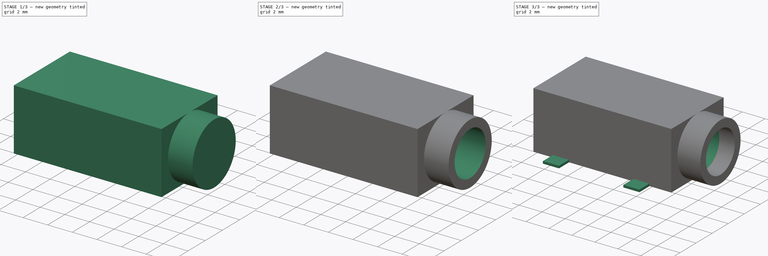
[diagram: build sequence overview — one tinted view per stage of 3, left to right]
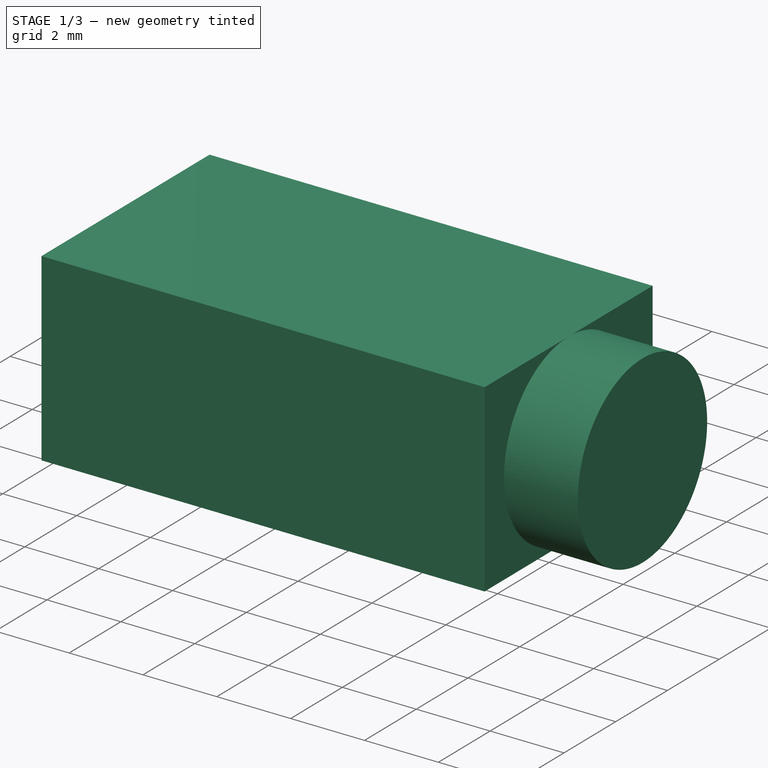
[diagram: stage 1 of 3 — iso view after this stage's code; geometry added in this stage tinted green]
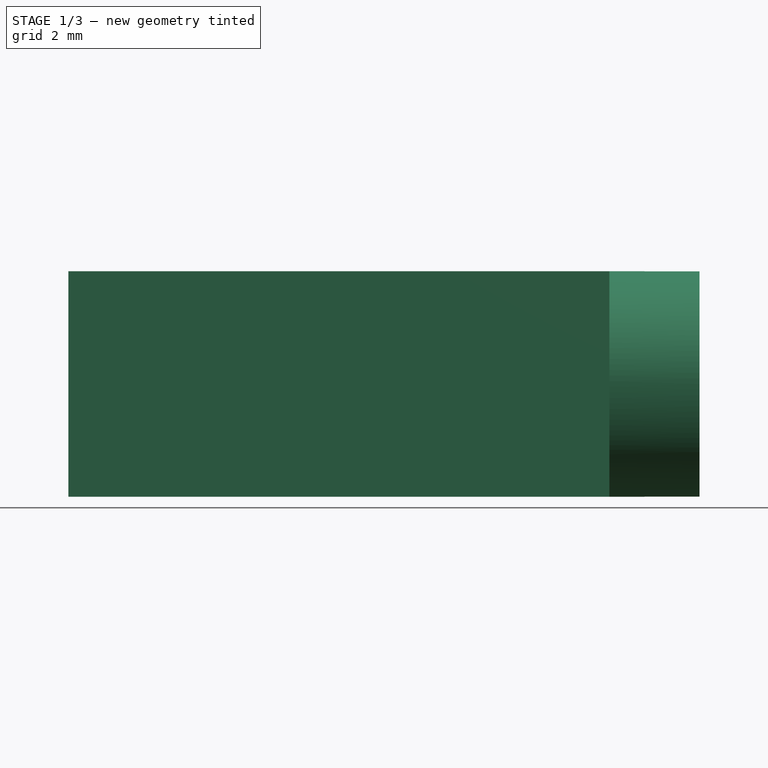
[diagram: stage 1 of 3 — front view after this stage's code; geometry added in this stage tinted green]
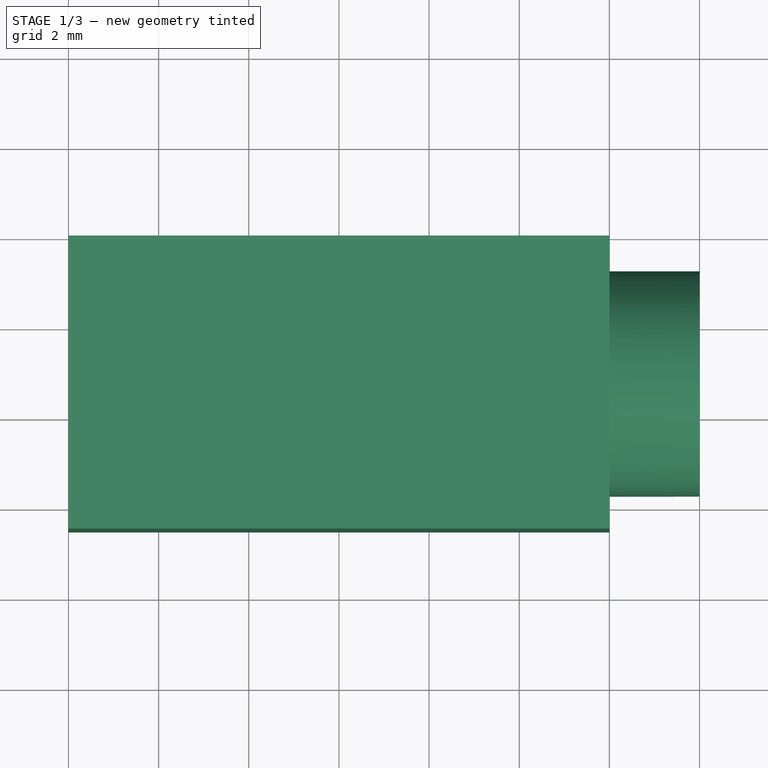
[diagram: stage 1 of 3 — top view after this stage's code; geometry added in this stage tinted green]
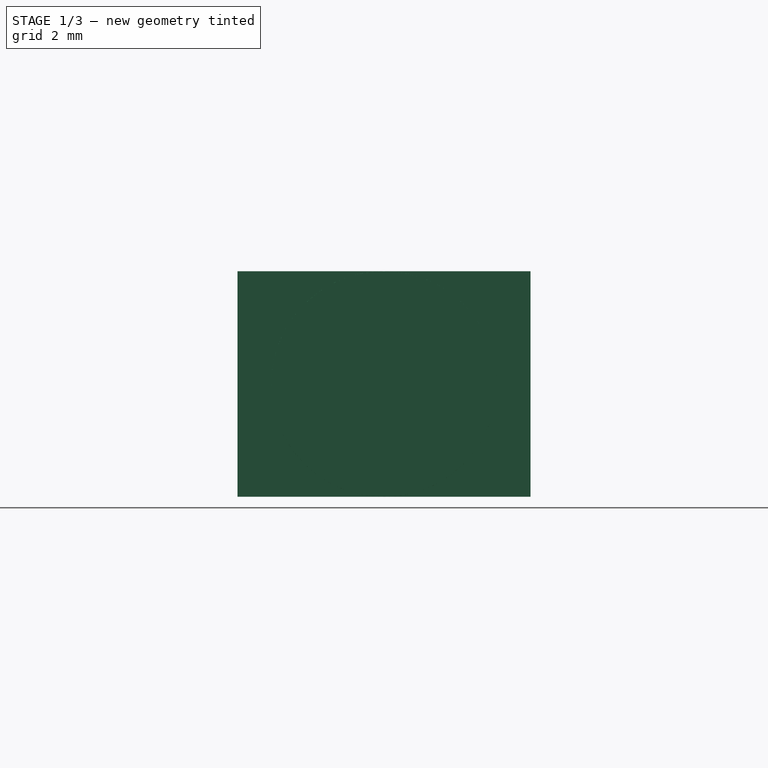
[diagram: stage 1 of 3 — right view after this stage's code; geometry added in this stage tinted green]
FCSTD DOCUMENT  (FreeCAD 0.14R3702 (Git))
Label: 3-5mm-audio-jack
License: CC-BY 3.0
LicenseURL: http://creativecommons.org/licenses/by/3.0/
objects: Sketcher::SketchObject×4, PartDesign::Pad×3, PartDesign::Pocket×1, PartDesign::Draft×1
note: 13 computed .brp shape members not serialized (recipe doc carries the construction recipe); baked Part::Feature solids carry a one-line shape summary decoded from their .brp

FEATURE [Sketcher::SketchObject] Sketch
  sketch-geometry (4):
    g0: LineSegment StartX=0 StartY=0 StartZ=0 EndX=12 EndY=0 EndZ=0
    g1: LineSegment StartX=12 StartY=0 StartZ=0 EndX=12 EndY=-6.5 EndZ=0
    g2: LineSegment StartX=12 StartY=-6.5 StartZ=0 EndX=0 EndY=-6.5 EndZ=0
    g3: LineSegment StartX=0 StartY=-6.5 StartZ=0 EndX=0 EndY=0 EndZ=0
  constraints (11):
    c: Coincident(g0,g1)
    c: Coincident(g1,g2)
    c: Coincident(g2,g3)
    c: Coincident(g3,g0)
    c: Horizontal(g0)
    c: Horizontal(g2)
    c: Vertical(g1)
    c: Vertical(g3)
    c: Coincident(g0,g-1)
    c: DistanceX(g-1,g0) = 12
    c: DistanceY(g0,g1) = -6.5
FEATURE [PartDesign::Pad] Pad
  Length = 5
  Length2 = 100
  Sketch = -> Sketch
  Type = 0
FEATURE [Sketcher::SketchObject] Sketch001
  Placement = pos=(12,0,0) rot=(0.57735,0.57735,0.57735;2.0944rad)
  Support = -> Pad [Face2]
  sketch-geometry (1):
    g0: Circle CenterX=-3.25 CenterY=2.5 CenterZ=0 NormalX=0 NormalY=0 NormalZ=1 Radius=2.5
  constraints (3):
    c: Radius(g0) = 2.5
    c: Tangent(g0,g-1)
    c: DistanceX(g-1,g0) = -3.25
FEATURE [PartDesign::Pad] Pad001
  Length = 2
  Length2 = 100
  Sketch = -> Sketch001
  Type = 0
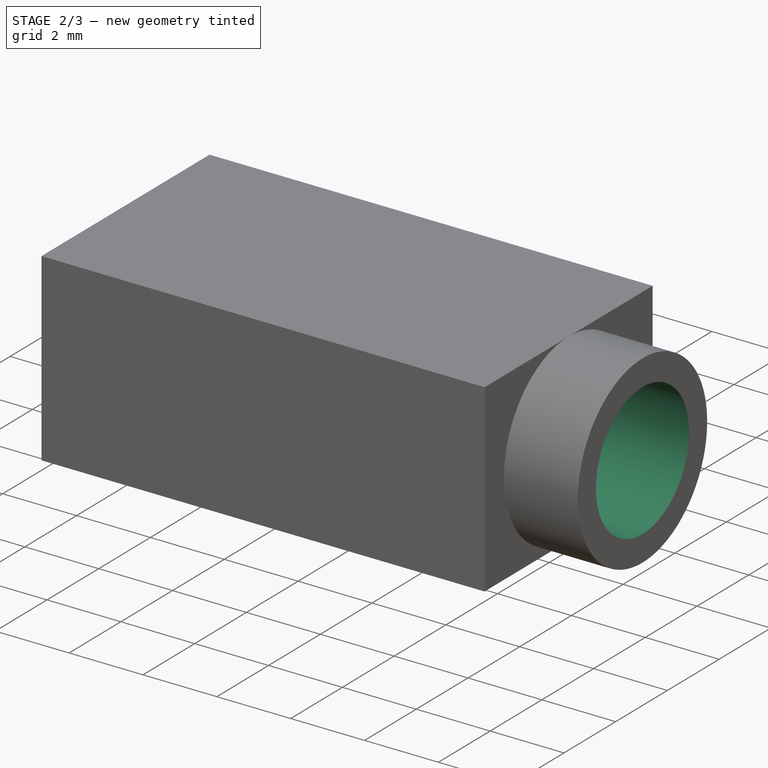
[diagram: stage 2 of 3 — iso view after this stage's code; geometry added in this stage tinted green]
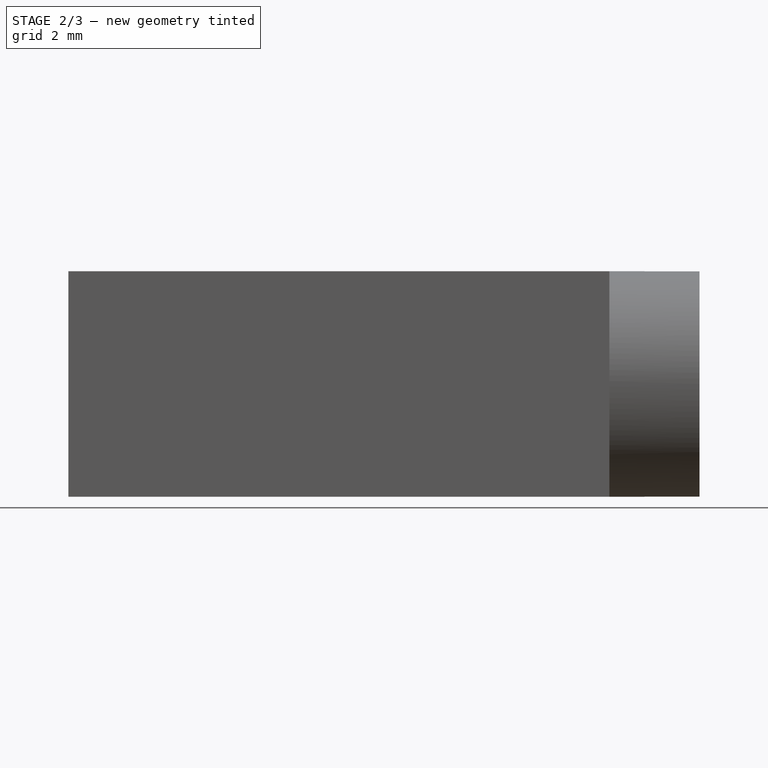
[diagram: stage 2 of 3 — front view after this stage's code; geometry added in this stage tinted green]
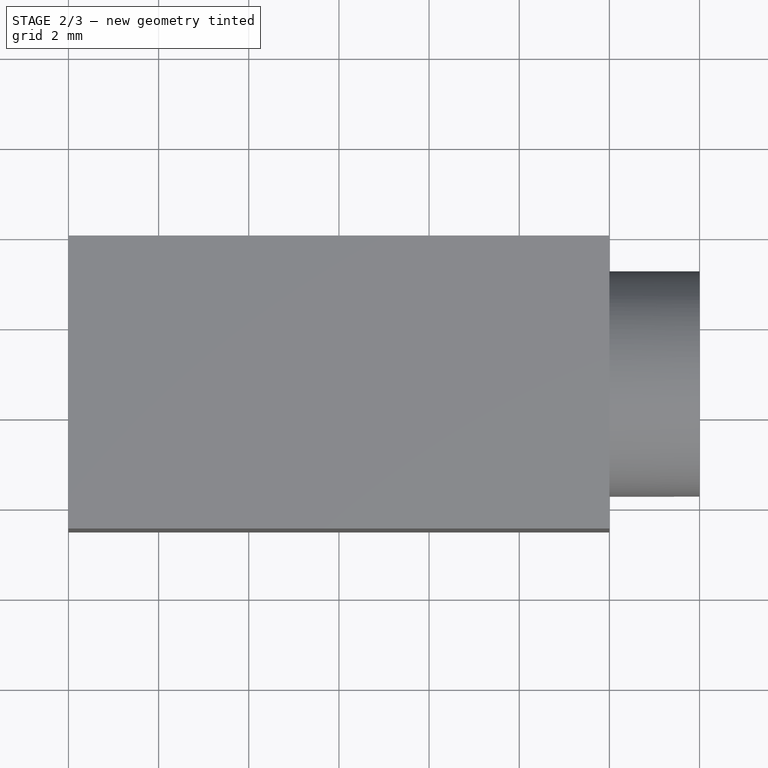
[diagram: stage 2 of 3 — top view after this stage's code; geometry added in this stage tinted green]
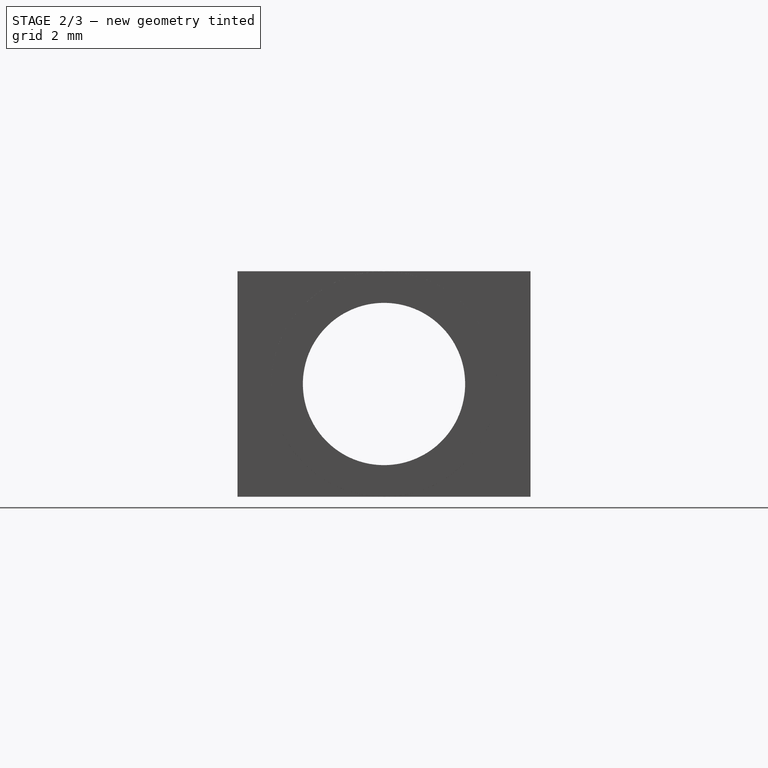
[diagram: stage 2 of 3 — right view after this stage's code; geometry added in this stage tinted green]
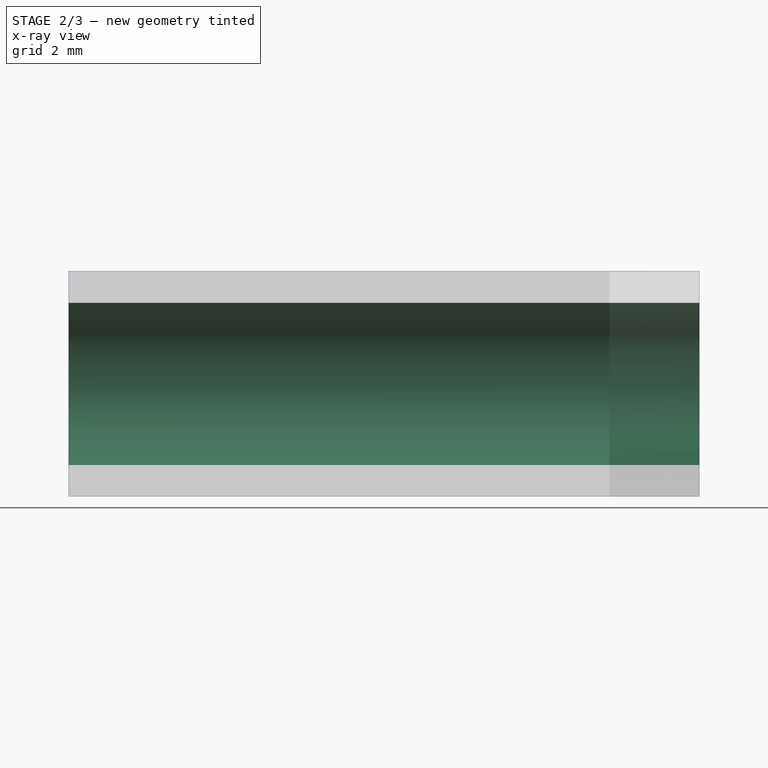
[diagram: stage 2 of 3 — x-ray composite at the front view; earlier geometry ghosted, this stage's added geometry solid]
FEATURE [Sketcher::SketchObject] Sketch002
  ExternalGeometry = -> [Pad001]
  Placement = pos=(14,0,0) rot=(0.57735,0.57735,0.57735;2.0944rad)
  Support = -> Pad001 [Face9]
  sketch-geometry (1):
    g0: Circle CenterX=-3.25 CenterY=2.5 CenterZ=0 NormalX=0 NormalY=0 NormalZ=1 Radius=1.8
  constraints (2):
    c: Coincident(g0,g-3)
    c: Radius(g0) = 1.8
FEATURE [PartDesign::Pocket] Pocket
  Length = 5
  Sketch = -> Sketch002
  Type = 1
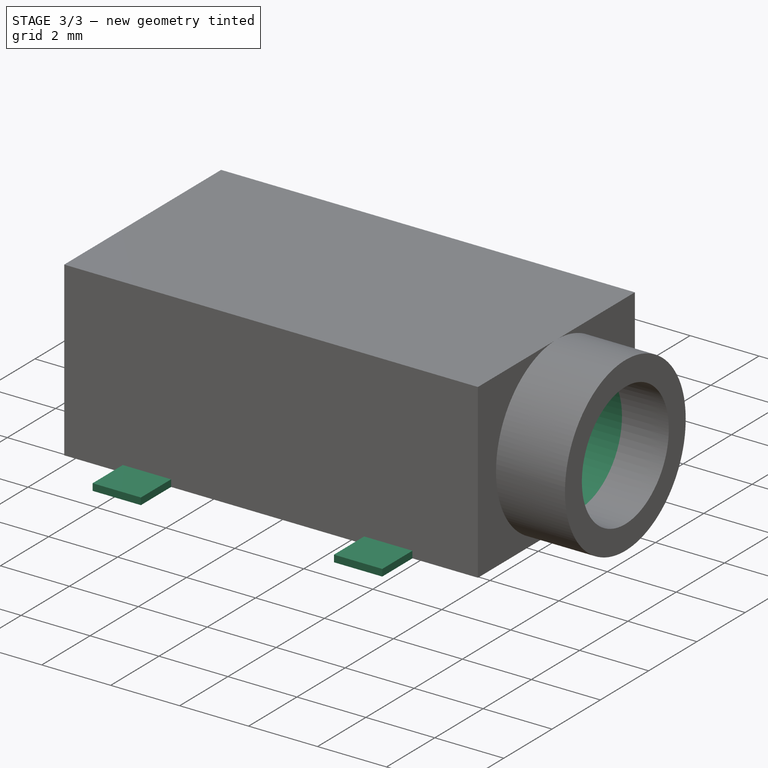
[diagram: stage 3 of 3 — iso view after this stage's code; geometry added in this stage tinted green]
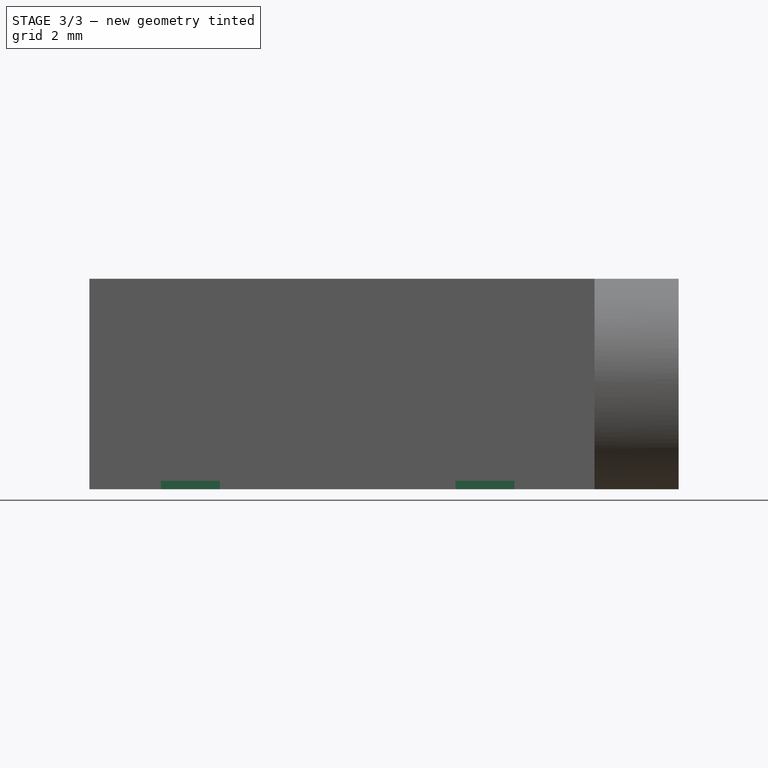
[diagram: stage 3 of 3 — front view after this stage's code; geometry added in this stage tinted green]
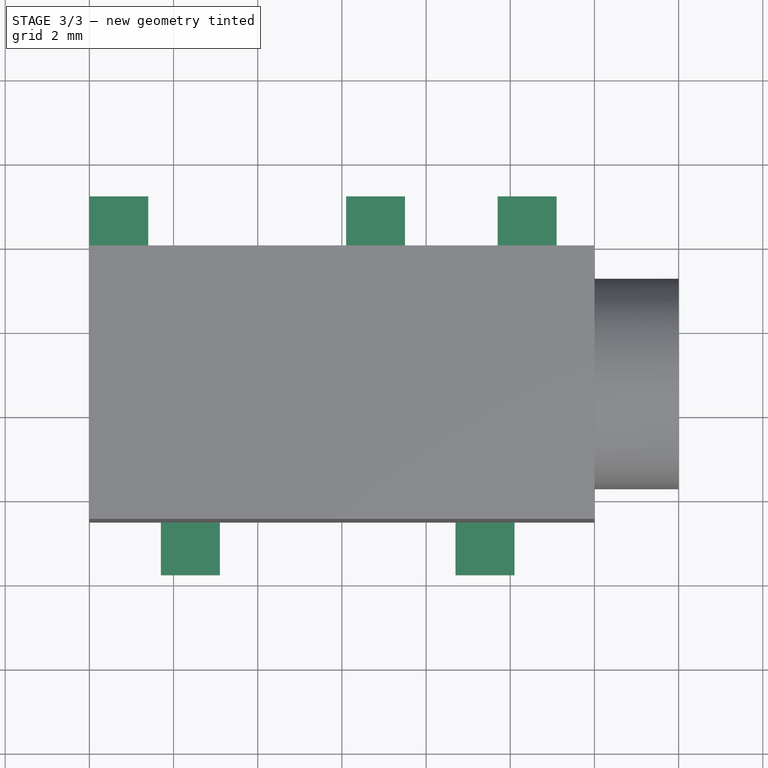
[diagram: stage 3 of 3 — top view after this stage's code; geometry added in this stage tinted green]
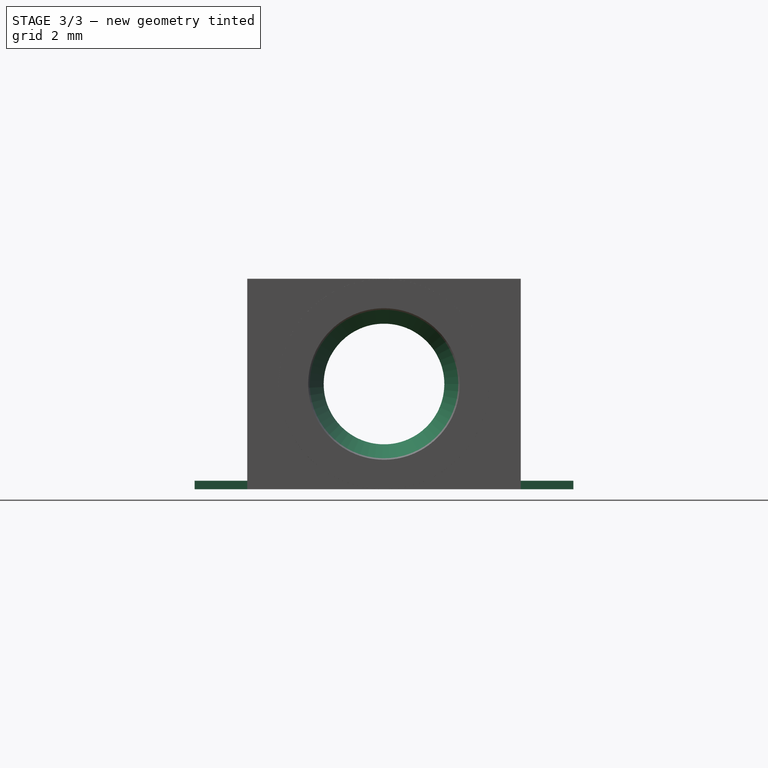
[diagram: stage 3 of 3 — right view after this stage's code; geometry added in this stage tinted green]
FEATURE [PartDesign::Draft] Draft
  Angle = 1.5
  Base = -> Pocket [Face7]
  NeutralPlane = -> Pocket [Face10]
  PullDirection = -> Pocket [Edge4]
FEATURE [Sketcher::SketchObject] Sketch003
  ExternalGeometry = -> [Draft]
  Placement = pos=(0,0,0) rot=(1,0,0;3.14159rad)
  Support = -> Draft [Face4]
  sketch-geometry (25):
    g0: LineSegment StartX=1.7 StartY=6.5 StartZ=0 EndX=3.1 EndY=6.5 EndZ=0
    g1: LineSegment StartX=3.1 StartY=6.5 StartZ=0 EndX=3.1 EndY=7.75 EndZ=0
    g2: LineSegment StartX=3.1 StartY=7.75 StartZ=0 EndX=1.7 EndY=7.75 EndZ=0
    g3: LineSegment StartX=1.7 StartY=7.75 StartZ=0 EndX=1.7 EndY=6.5 EndZ=0
    g4: LineSegment StartX=8.7 StartY=6.5 StartZ=0 EndX=10.1 EndY=6.5 EndZ=0
    g5: LineSegment StartX=10.1 StartY=6.5 StartZ=0 EndX=10.1 EndY=7.75 EndZ=0
    g6: LineSegment StartX=10.1 StartY=7.75 StartZ=0 EndX=8.7 EndY=7.75 EndZ=0
    g7: LineSegment StartX=8.7 StartY=7.75 StartZ=0 EndX=8.7 EndY=6.5 EndZ=0
    g8: LineSegment StartX=0 StartY=0 StartZ=0 EndX=1.4 EndY=0 EndZ=0
    g9: LineSegment StartX=1.4 StartY=0 StartZ=0 EndX=1.4 EndY=-1.25 EndZ=0
    g10: LineSegment StartX=1.4 StartY=-1.25 StartZ=0 EndX=0 EndY=-1.25 EndZ=0
    g11: LineSegment StartX=0 StartY=-1.25 StartZ=0 EndX=0 EndY=0 EndZ=0
    g12: LineSegment StartX=6.1 StartY=0 StartZ=0 EndX=7.5 EndY=0 EndZ=0
    g13: LineSegment StartX=7.5 StartY=0 StartZ=0 EndX=7.5 EndY=-1.25 EndZ=0
    g14: LineSegment StartX=7.5 StartY=-1.25 StartZ=0 EndX=6.1 EndY=-1.25 EndZ=0
    g15: LineSegment StartX=6.1 StartY=-1.25 StartZ=0 EndX=6.1 EndY=0 EndZ=0
    g16: LineSegment StartX=9.7 StartY=0 StartZ=0 EndX=11.1 EndY=0 EndZ=0
    g17: LineSegment StartX=11.1 StartY=0 StartZ=0 EndX=11.1 EndY=-1.25 EndZ=0
    g18: LineSegment StartX=11.1 StartY=-1.25 StartZ=0 EndX=9.7 EndY=-1.25 EndZ=0
    g19: LineSegment StartX=9.7 StartY=-1.25 StartZ=0 EndX=9.7 EndY=0 EndZ=0
    g20: GeomPoint [constr] X=2.4 Y=7.75 Z=0
    g21: GeomPoint [constr] X=9.4 Y=7.75 Z=0
    g22: GeomPoint [constr] X=0.7 Y=0 Z=0
    g23: GeomPoint [constr] X=6.8 Y=0 Z=0
    g24: GeomPoint [constr] X=10.4 Y=0 Z=0
  constraints (70):
    c: Coincident(g0,g1)
    c: Coincident(g1,g2)
    c: Coincident(g2,g3)
    c: Coincident(g3,g0)
    c: Horizontal(g0)
    c: Horizontal(g2)
    c: Vertical(g1)
    c: Vertical(g3)
    c: Coincident(g4,g5)
    c: Coincident(g5,g6)
    c: Coincident(g6,g7)
    c: Coincident(g7,g4)
    c: Horizontal(g4)
    c: Horizontal(g6)
    c: Vertical(g5)
    c: Vertical(g7)
    c: Coincident(g8,g9)
    c: Coincident(g9,g10)
    c: Coincident(g10,g11)
    c: Coincident(g11,g8)
    c: Horizontal(g8)
    c: Horizontal(g10)
    c: Vertical(g9)
    c: Vertical(g11)
    c: Coincident(g12,g13)
    c: Coincident(g13,g14)
    c: Coincident(g14,g15)
    c: Coincident(g15,g12)
    c: Horizontal(g12)
    c: Horizontal(g14)
    c: Vertical(g13)
    c: Vertical(g15)
    c: Coincident(g16,g17)
    c: Coincident(g17,g18)
    c: Coincident(g18,g19)
    c: Coincident(g19,g16)
    c: Horizontal(g16)
    c: Horizontal(g18)
    c: Vertical(g17)
    c: Vertical(g19)
    c: Equal(g10,g14)
    c: Equal(g14,g18)
    c: Equal(g18,g2)
    c: Equal(g2,g6)
    c: Equal(g11,g15)
    c: Equal(g15,g19)
    c: Equal(g19,g7)
    c: Equal(g7,g3)
    c: PointOnObject(g12,g-1)
    c: PointOnObject(g8,g-1)
    c: PointOnObject(g16,g-1)
    c: PointOnObject(g0,g-3)
    c: PointOnObject(g4,g-3)
    c: DistanceY(g5,g17) = -9
    c: PointOnObject(g20,g2)
    c: PointOnObject(g21,g6)
    c: Symmetric(g2,g1,g20)
    c: Symmetric(g6,g5,g21)
    c: DistanceX(g21,g-3) = 2.6
    c: DistanceX(g-3,g20) = -9.6
    c: PointOnObject(g22,g8)
    c: PointOnObject(g23,g12)
    c: PointOnObject(g24,g16)
    c: Symmetric(g16,g16,g24)
    c: Symmetric(g12,g12,g23)
    c: Symmetric(g8,g8,g22)
    c: DistanceX(g24,g-3) = 1.6
    c: DistanceX(g23,g-3) = 5.2
    c: DistanceX(g22,g-3) = 11.3
    c: Coincident(g8,g-1)
FEATURE [PartDesign::Pad] Pad002
  Length = 0.2
  Length2 = 100
  Reversed = true
  Sketch = -> Sketch003
  Type = 0
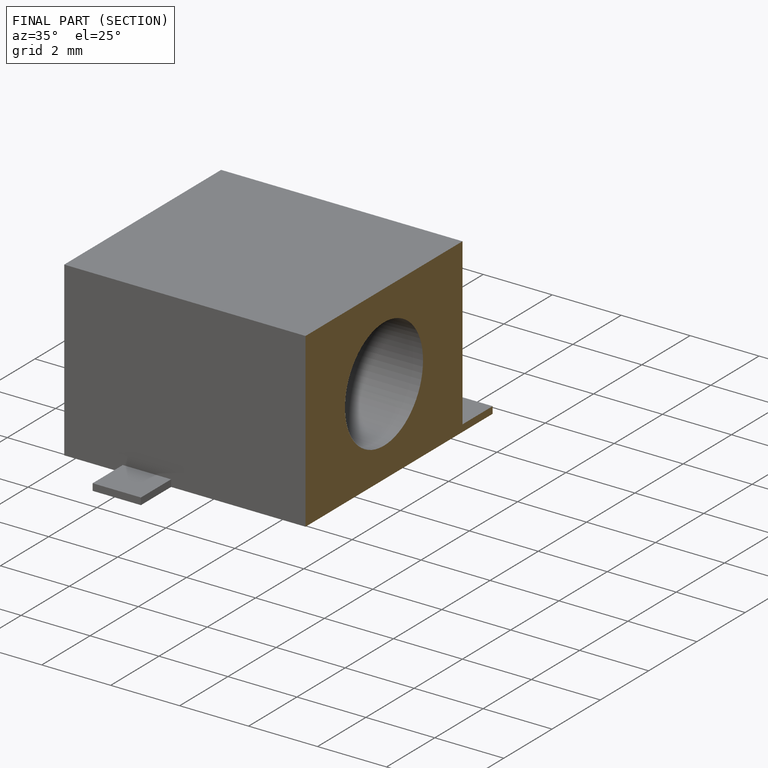
[diagram: finished part — half-section view (interior)]
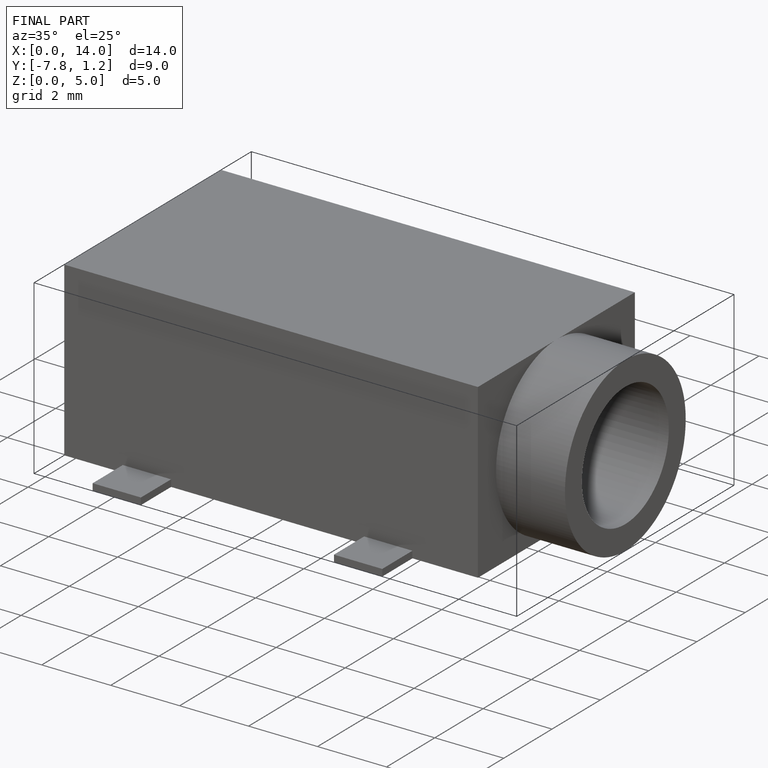
[diagram: finished part — iso view with bounding-box wireframe]
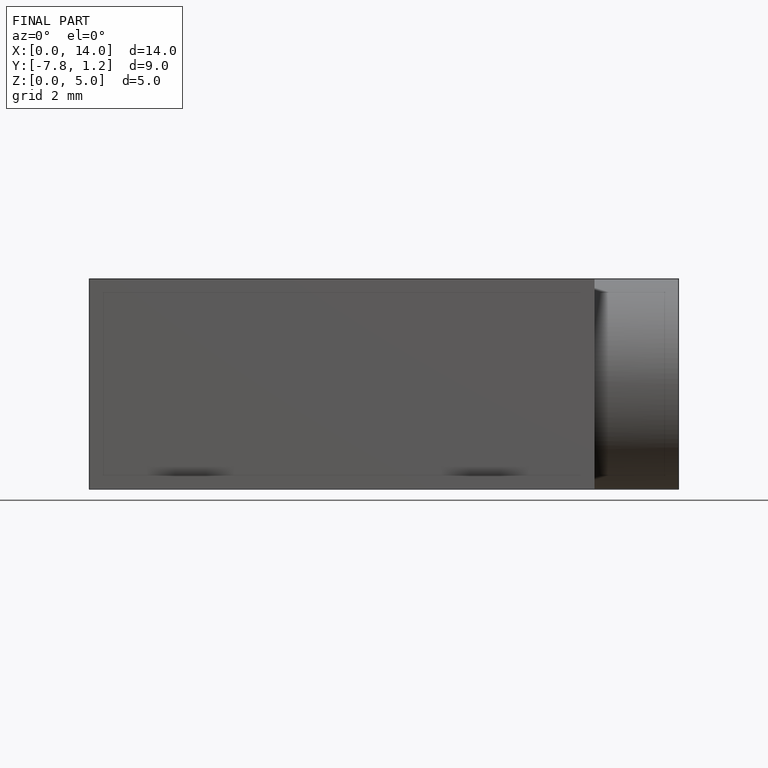
[diagram: finished part — front view with bounding-box wireframe]
